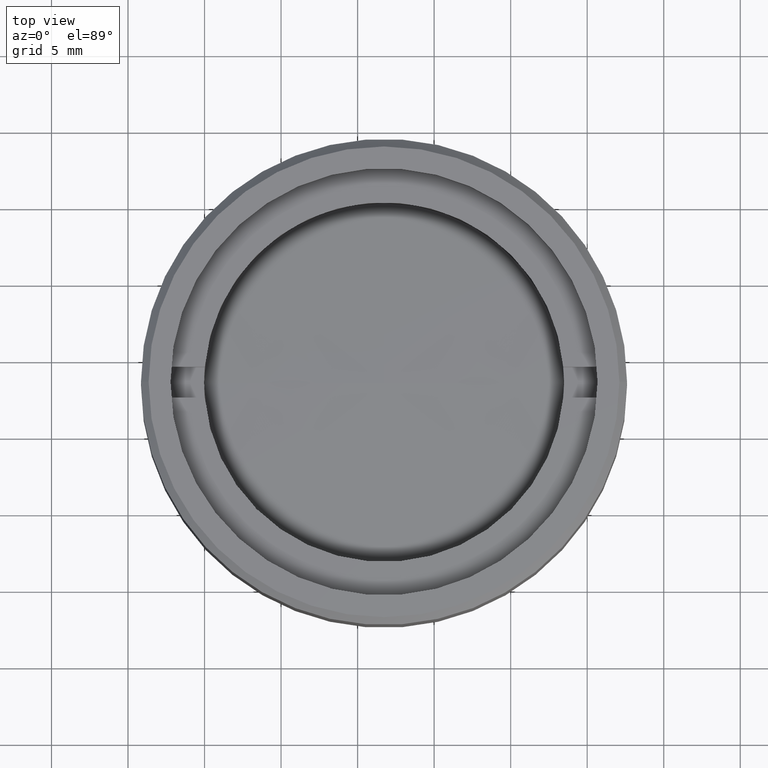
[diagram: clean part render]
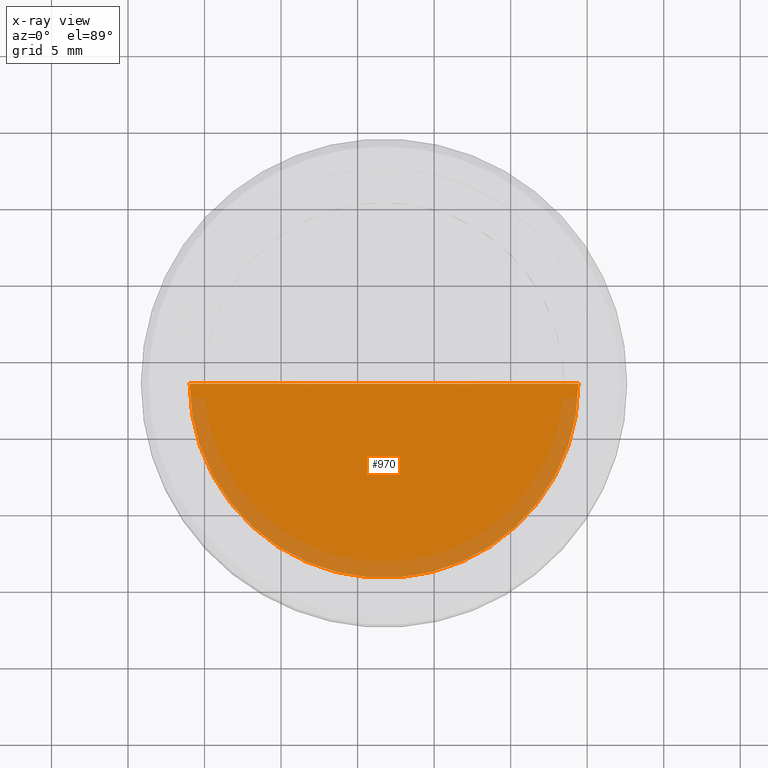
[diagram: x-ray — body ghosted, one internal face saturated and labeled with its STEP entity id]
A machine part, top view, then the same camera in x-ray: the body is ghosted and one INTERNAL B-rep face — a face not visible from any outside direction — is saturated and labeled: STEP entity #970.
In plain terms, the highlighted spherical surface has radius 186.8 mm.
Its self-contained STEP definition (entity closure, byte-faithful):
#75 = DIRECTION ( 'NONE',  ( -1.000000000000000000, 0.000000000000000000, 0.000000000000000000 ) ) ;
#87 = EDGE_CURVE ( 'NONE', #913, #1639, #843, .T. ) ;
#176 = DIRECTION ( 'NONE',  ( -1.000000000000000000, 0.000000000000000000, -3.414809992080329023E-17 ) ) ;
#201 = AXIS2_PLACEMENT_3D ( 'NONE', #1015, #1025, #75 ) ;
#204 = EDGE_CURVE ( 'NONE', #913, #1639, #1315, .T. ) ;
#297 = EDGE_LOOP ( 'NONE', ( #749, #917 ) ) ;
#299 = DIRECTION ( 'NONE',  ( 3.414809992080329639E-17, 0.000000000000000000, -1.000000000000000000 ) ) ;
#456 = DIRECTION ( 'NONE',  ( -1.000000000000000000, -1.224646799147353947E-16, 0.000000000000000000 ) ) ;
#465 = CARTESIAN_POINT ( 'NONE',  ( 0.000000000000000000, 0.000000000000000000, 182.7999999999999829 ) ) ;
#560 = AXIS2_PLACEMENT_3D ( 'NONE', #1483, #299, #176 ) ;
#564 = AXIS2_PLACEMENT_3D ( 'NONE', #465, #584, #456 ) ;
#584 = DIRECTION ( 'NONE',  ( -1.224646799147353947E-16, 1.000000000000000000, -3.749399456654645388E-33 ) ) ;
#743 = CARTESIAN_POINT ( 'NONE',  ( -12.70000000000015916, 0.000000000000000000, -3.567781550352729703 ) ) ;
#749 = ORIENTED_EDGE ( 'NONE', *, *, #204, .F. ) ;
#843 = CIRCLE ( 'NONE', #560, 12.69999999999999929 ) ;
#913 = VERTEX_POINT ( 'NONE', #979 ) ;
#917 = ORIENTED_EDGE ( 'NONE', *, *, #87, .T. ) ;
#970 = ADVANCED_FACE ( 'NONE', ( #1006 ), #1264, .T. ) ;
#979 = CARTESIAN_POINT ( 'NONE',  ( 12.70000000000015916, 1.555301434917159929E-15, -3.567781550352724818 ) ) ;
#1006 = FACE_OUTER_BOUND ( 'NONE', #297, .T. ) ;
#1015 = CARTESIAN_POINT ( 'NONE',  ( 0.000000000000000000, 0.000000000000000000, 182.7999999999999829 ) ) ;
#1025 = DIRECTION ( 'NONE',  ( 0.000000000000000000, -0.000000000000000000, 1.000000000000000000 ) ) ;
#1264 = SPHERICAL_SURFACE ( 'NONE', #201, 186.7999999999999829 ) ;
#1315 = CIRCLE ( 'NONE', #564, 186.7999999999999829 ) ;
#1483 = CARTESIAN_POINT ( 'NONE',  ( 1.092318063924112199E-16, 0.000000000000000000, -3.567781550352724818 ) ) ;
#1639 = VERTEX_POINT ( 'NONE', #743 ) ;